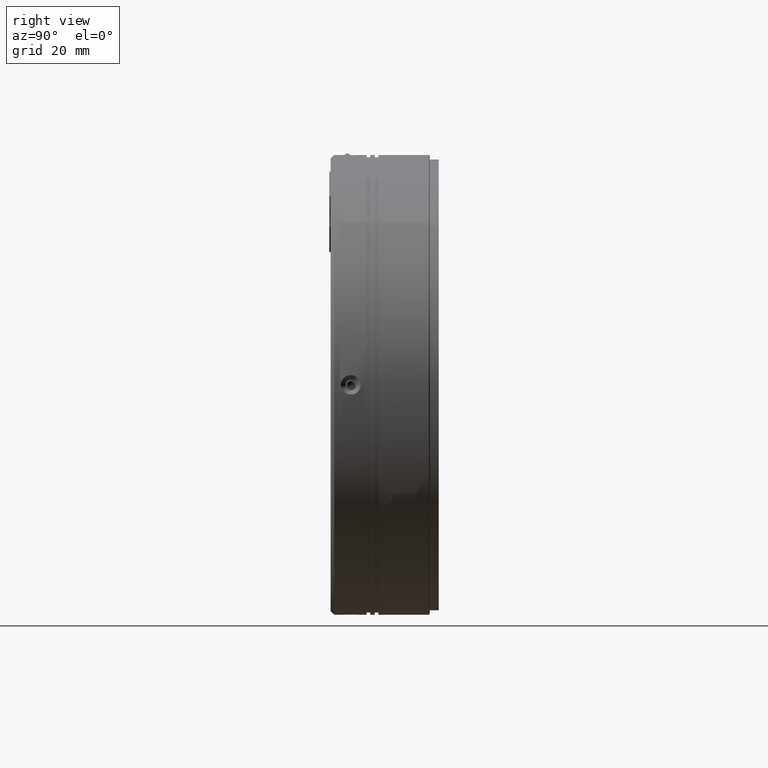
[diagram: clean part render]
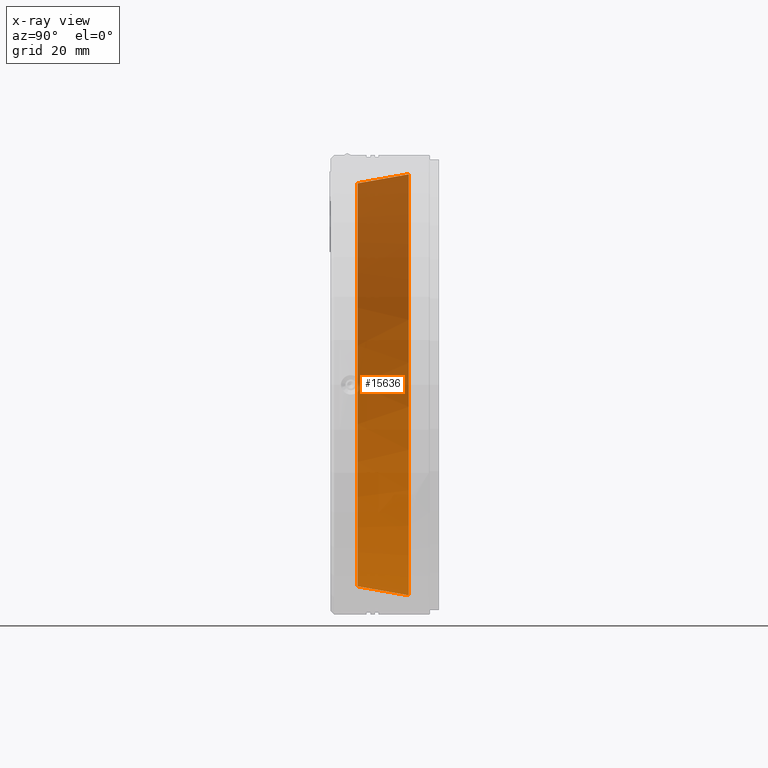
[diagram: x-ray — body ghosted, one internal face saturated and labeled with its STEP entity id]
A machine part, right view, then the same camera in x-ray: the body is ghosted and one INTERNAL B-rep face — a face not visible from any outside direction — is saturated and labeled: STEP entity #15636.
In plain terms, the highlighted conical surface has half-angle 10 deg.
Its self-contained STEP definition (entity closure, byte-faithful):
#4381 = ORIENTED_EDGE ( 'NONE', *, *, #24579, .T. ) ;
#5571 = ORIENTED_EDGE ( 'NONE', *, *, #40776, .T. ) ;
#6522 = LINE ( 'NONE', #23497, #81622 ) ;
#7177 = DIRECTION ( 'NONE',  ( -0.0000000000000000000, 1.000000000000000000, -0.0000000000000000000 ) ) ;
#8572 = AXIS2_PLACEMENT_3D ( 'NONE', #46025, #53354, #39033 ) ;
#15636 = ADVANCED_FACE ( 'NONE', ( #59869 ), #31483, .T. ) ;
#16560 = CARTESIAN_POINT ( 'NONE',  ( 3.374341791305877200E-013, 18.74971081375443300, 46.69696155060237400 ) ) ;
#17118 = CARTESIAN_POINT ( 'NONE',  ( 3.317154506813025100E-013, 18.74971081375443300, 2.765813746307307400E-015 ) ) ;
#17618 = CARTESIAN_POINT ( 'NONE',  ( -44.69696155060206900, 7.407147174518520700, 8.239612835763062900E-015 ) ) ;
#18075 = CARTESIAN_POINT ( 'NONE',  ( 3.317154506813025100E-013, 18.74971081375443300, -46.69696155060237400 ) ) ;
#18208 = EDGE_CURVE ( 'NONE', #69225, #80332, #49508, .T. ) ;
#19959 = CARTESIAN_POINT ( 'NONE',  ( 3.317154506813025100E-013, 7.407147174518520700, 44.69696155060245200 ) ) ;
#21143 = DIRECTION ( 'NONE',  ( -0.0000000000000000000, 1.000000000000000000, -0.0000000000000000000 ) ) ;
#22832 = CARTESIAN_POINT ( 'NONE',  ( 3.373117144506730100E-013, 7.407147174518520700, -44.69696155060245200 ) ) ;
#23497 = CARTESIAN_POINT ( 'NONE',  ( 3.374341791305877200E-013, 18.74971081375444700, -46.69696155060245200 ) ) ;
#24249 = VERTEX_POINT ( 'NONE', #18075 ) ;
#24365 = DIRECTION ( 'NONE',  ( 0.0000000000000000000, 2.971882398124769400E-016, 1.000000000000000000 ) ) ;
#24579 = EDGE_CURVE ( 'NONE', #42620, #69225, #62760, .T. ) ;
#27874 = VECTOR ( 'NONE', #72244, 1000.000000000000000 ) ;
#31483 = CONICAL_SURFACE ( 'NONE', #8572, 46.69696155060245200, 0.1745329251994257000 ) ;
#39033 = DIRECTION ( 'NONE',  ( 0.0000000000000000000, 0.0000000000000000000, 1.000000000000000000 ) ) ;
#40776 = EDGE_CURVE ( 'NONE', #92085, #42620, #57195, .T. ) ;
#42620 = VERTEX_POINT ( 'NONE', #17618 ) ;
#45266 = ORIENTED_EDGE ( 'NONE', *, *, #18208, .T. ) ;
#46025 = CARTESIAN_POINT ( 'NONE',  ( 3.317154506813025100E-013, 18.74971081375444700, 2.765813746307307400E-015 ) ) ;
#49508 = LINE ( 'NONE', #64925, #27874 ) ;
#50713 = CARTESIAN_POINT ( 'NONE',  ( 3.317154506813025100E-013, 7.407147174518520700, 2.765813746307307400E-015 ) ) ;
#52589 = EDGE_CURVE ( 'NONE', #80332, #24249, #61670, .T. ) ;
#53354 = DIRECTION ( 'NONE',  ( -0.0000000000000000000, 1.000000000000000000, 0.0000000000000000000 ) ) ;
#54273 = AXIS2_PLACEMENT_3D ( 'NONE', #17118, #67880, #24365 ) ;
#57195 = CIRCLE ( 'NONE', #75398, 44.69696155060245200 ) ;
#58050 = DIRECTION ( 'NONE',  ( 0.0000000000000000000, 4.657292350432958600E-016, 1.000000000000000000 ) ) ;
#59869 = FACE_OUTER_BOUND ( 'NONE', #64302, .T. ) ;
#61670 = CIRCLE ( 'NONE', #54273, 46.69696155060245200 ) ;
#62760 = CIRCLE ( 'NONE', #94006, 44.69696155060245200 ) ;
#64302 = EDGE_LOOP ( 'NONE', ( #74946, #5571, #4381, #45266, #66751 ) ) ;
#64677 = CARTESIAN_POINT ( 'NONE',  ( 3.317154506813025100E-013, 7.407147174518520700, 2.765813746307307400E-015 ) ) ;
#64925 = CARTESIAN_POINT ( 'NONE',  ( 3.317154506813025100E-013, 18.74971081375444700, 46.69696155060245200 ) ) ;
#66751 = ORIENTED_EDGE ( 'NONE', *, *, #52589, .T. ) ;
#67880 = DIRECTION ( 'NONE',  ( 0.0000000000000000000, -1.000000000000000000, 0.0000000000000000000 ) ) ;
#69225 = VERTEX_POINT ( 'NONE', #19959 ) ;
#71992 = DIRECTION ( 'NONE',  ( 0.0000000000000000000, 4.657292350432958600E-016, 1.000000000000000000 ) ) ;
#72244 = DIRECTION ( 'NONE',  ( 0.0000000000000000000, 0.9848077530122093500, 0.1736481776669232000 ) ) ;
#74701 = DIRECTION ( 'NONE',  ( 2.126576849575684100E-017, 0.9848077530122093500, -0.1736481776669232000 ) ) ;
#74946 = ORIENTED_EDGE ( 'NONE', *, *, #82834, .F. ) ;
#75398 = AXIS2_PLACEMENT_3D ( 'NONE', #64677, #21143, #71992 ) ;
#80332 = VERTEX_POINT ( 'NONE', #16560 ) ;
#81622 = VECTOR ( 'NONE', #74701, 1000.000000000000000 ) ;
#82834 = EDGE_CURVE ( 'NONE', #92085, #24249, #6522, .T. ) ;
#92085 = VERTEX_POINT ( 'NONE', #22832 ) ;
#94006 = AXIS2_PLACEMENT_3D ( 'NONE', #50713, #7177, #58050 ) ;